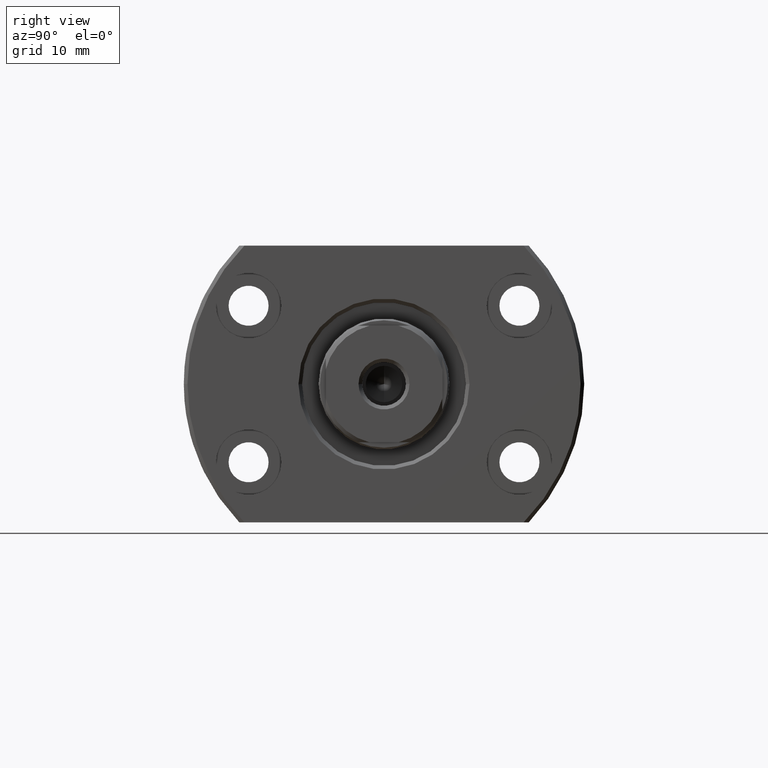
[diagram: clean part render]
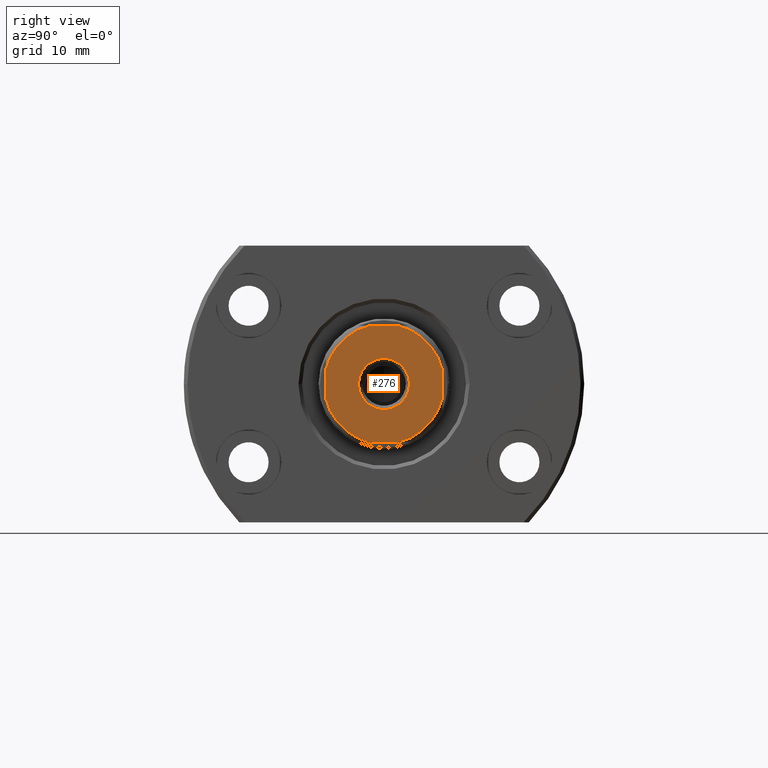
[diagram: same view with one face highlighted and labeled with its STEP entity id]
A machine part, right view. The second image highlights one B-rep face of the part: STEP entity #276.
In plain terms, the highlighted planar face has unit normal (-1, -0, 0).
Its self-contained STEP definition (entity closure, byte-faithful):
#18 = CARTESIAN_POINT ( 'NONE',  ( 74.99999999999985789, -8.000000000001245226, 2.015564437069743420 ) ) ;
#35 = CARTESIAN_POINT ( 'NONE',  ( 75.00000000000014211, 7.999999999998758327, -2.015564437079602200 ) ) ;
#69 = DIRECTION ( 'NONE',  ( 0.000000000000000000, 0.000000000000000000, -1.000000000000000000 ) ) ;
#72 = ORIENTED_EDGE ( 'NONE', *, *, #246, .T. ) ;
#95 = EDGE_CURVE ( 'NONE', #1307, #1718, #1510, .T. ) ;
#96 = LINE ( 'NONE', #374, #1894 ) ;
#111 = DIRECTION ( 'NONE',  ( 1.000000000000000000, 1.069542322069065801E-17, 0.000000000000000000 ) ) ;
#172 = ORIENTED_EDGE ( 'NONE', *, *, #95, .F. ) ;
#237 = VERTEX_POINT ( 'NONE', #3118 ) ;
#246 = EDGE_CURVE ( 'NONE', #237, #1926, #2461, .T. ) ;
#276 = ADVANCED_FACE ( 'NONE', ( #2366, #3133 ), #1137, .F. ) ;
#316 = CARTESIAN_POINT ( 'NONE',  ( 75.00000000000014211, 7.999999999998758327, 3.544361719689459900 ) ) ;
#354 = DIRECTION ( 'NONE',  ( -1.566181886088703027E-14, -1.000000000000000000, -2.447159197013598480E-16 ) ) ;
#374 = CARTESIAN_POINT ( 'NONE',  ( 74.99999999999985789, -8.000000000001243450, -3.544361719689461232 ) ) ;
#419 = VERTEX_POINT ( 'NONE', #3150 ) ;
#442 = VECTOR ( 'NONE', #354, 1000.000000000000000 ) ;
#514 = DIRECTION ( 'NONE',  ( 1.000000000000000000, 1.069542322069065801E-17, 0.000000000000000000 ) ) ;
#515 = VERTEX_POINT ( 'NONE', #2213 ) ;
#574 = AXIS2_PLACEMENT_3D ( 'NONE', #2583, #111, #852 ) ;
#582 = DIRECTION ( 'NONE',  ( -1.000000000000000000, -1.069542322069065801E-17, -0.000000000000000000 ) ) ;
#601 = CARTESIAN_POINT ( 'NONE',  ( 75.00000000000000000, -1.242948599619172861E-12, 0.000000000000000000 ) ) ;
#611 = LINE ( 'NONE', #1145, #442 ) ;
#624 = VECTOR ( 'NONE', #69, 1000.000000000000000 ) ;
#627 = VERTEX_POINT ( 'NONE', #1267 ) ;
#631 = CIRCLE ( 'NONE', #574, 8.250000000000008882 ) ;
#641 = VECTOR ( 'NONE', #3063, 1000.000000000000000 ) ;
#730 = ORIENTED_EDGE ( 'NONE', *, *, #1847, .F. ) ;
#738 = CARTESIAN_POINT ( 'NONE',  ( 75.00000000000000000, 8.021567415517992473E-16, 0.000000000000000000 ) ) ;
#813 = EDGE_CURVE ( 'NONE', #2883, #2110, #96, .T. ) ;
#852 = DIRECTION ( 'NONE',  ( 0.000000000000000000, -1.000000000000000000, 0.000000000000000000 ) ) ;
#875 = EDGE_LOOP ( 'NONE', ( #1975, #2621, #172, #3050, #730, #1335, #3104, #1123 ) ) ;
#915 = CIRCLE ( 'NONE', #2098, 8.250000000000008882 ) ;
#1025 = DIRECTION ( 'NONE',  ( 0.000000000000000000, -1.000000000000000000, 0.000000000000000000 ) ) ;
#1049 = EDGE_CURVE ( 'NONE', #1307, #1209, #631, .T. ) ;
#1123 = ORIENTED_EDGE ( 'NONE', *, *, #1298, .T. ) ;
#1133 = DIRECTION ( 'NONE',  ( 0.000000000000000000, -2.447159197013598480E-16, 1.000000000000000000 ) ) ;
#1137 = PLANE ( 'NONE',  #2935 ) ;
#1145 = CARTESIAN_POINT ( 'NONE',  ( 75.00000000000005684, 3.544361719688217338, -8.000000000000000000 ) ) ;
#1179 = ORIENTED_EDGE ( 'NONE', *, *, #1442, .T. ) ;
#1209 = VERTEX_POINT ( 'NONE', #1910 ) ;
#1229 = AXIS2_PLACEMENT_3D ( 'NONE', #1356, #582, #2533 ) ;
#1243 = DIRECTION ( 'NONE',  ( 1.000000000000000000, 1.069542322069065801E-17, 0.000000000000000000 ) ) ;
#1267 = CARTESIAN_POINT ( 'NONE',  ( 74.99999999999997158, -2.015564437074671478, -8.000000000000001776 ) ) ;
#1298 = EDGE_CURVE ( 'NONE', #2883, #627, #1741, .T. ) ;
#1307 = VERTEX_POINT ( 'NONE', #3001 ) ;
#1335 = ORIENTED_EDGE ( 'NONE', *, *, #1392, .T. ) ;
#1356 = CARTESIAN_POINT ( 'NONE',  ( 75.00000000000000000, -1.242948599619172861E-12, 0.000000000000000000 ) ) ;
#1392 = EDGE_CURVE ( 'NONE', #515, #2110, #1833, .T. ) ;
#1442 = EDGE_CURVE ( 'NONE', #1926, #237, #1698, .T. ) ;
#1510 = LINE ( 'NONE', #316, #624 ) ;
#1522 = DIRECTION ( 'NONE',  ( 1.000000000000000000, 1.069542322069065801E-17, 0.000000000000000000 ) ) ;
#1576 = AXIS2_PLACEMENT_3D ( 'NONE', #738, #1243, #1025 ) ;
#1591 = DIRECTION ( 'NONE',  ( -1.000000000000000000, -1.069542322069065801E-17, 0.000000000000000000 ) ) ;
#1698 = CIRCLE ( 'NONE', #1229, 3.500000000000215827 ) ;
#1718 = VERTEX_POINT ( 'NONE', #35 ) ;
#1741 = CIRCLE ( 'NONE', #1576, 8.250000000000008882 ) ;
#1795 = LINE ( 'NONE', #2818, #641 ) ;
#1829 = DIRECTION ( 'NONE',  ( -1.000000000000000000, -1.069542322069065801E-17, -0.000000000000000000 ) ) ;
#1833 = CIRCLE ( 'NONE', #2249, 8.250000000000010658 ) ;
#1847 = EDGE_CURVE ( 'NONE', #515, #1209, #1795, .T. ) ;
#1894 = VECTOR ( 'NONE', #1133, 1000.000000000000000 ) ;
#1910 = CARTESIAN_POINT ( 'NONE',  ( 75.00000000000002842, 2.015564437074672366, 8.000000000000001776 ) ) ;
#1926 = VERTEX_POINT ( 'NONE', #2073 ) ;
#1975 = ORIENTED_EDGE ( 'NONE', *, *, #2001, .F. ) ;
#2001 = EDGE_CURVE ( 'NONE', #419, #627, #611, .T. ) ;
#2073 = CARTESIAN_POINT ( 'NONE',  ( 75.00000000000000000, 3.499999999998967493, 0.000000000000000000 ) ) ;
#2098 = AXIS2_PLACEMENT_3D ( 'NONE', #2769, #514, #2539 ) ;
#2110 = VERTEX_POINT ( 'NONE', #18 ) ;
#2121 = CARTESIAN_POINT ( 'NONE',  ( 75.00000000000000000, -5.004653406798891484E-34, 0.000000000000000000 ) ) ;
#2213 = CARTESIAN_POINT ( 'NONE',  ( 74.99999999999997158, -2.015564437074678139, 8.000000000000001776 ) ) ;
#2249 = AXIS2_PLACEMENT_3D ( 'NONE', #2763, #1522, #2518 ) ;
#2311 = EDGE_CURVE ( 'NONE', #419, #1718, #915, .T. ) ;
#2366 = FACE_BOUND ( 'NONE', #3198, .T. ) ;
#2461 = CIRCLE ( 'NONE', #3203, 3.500000000000215827 ) ;
#2518 = DIRECTION ( 'NONE',  ( 0.000000000000000000, -1.000000000000000000, 0.000000000000000000 ) ) ;
#2533 = DIRECTION ( 'NONE',  ( 0.000000000000000000, -1.000000000000000000, 0.000000000000000000 ) ) ;
#2539 = DIRECTION ( 'NONE',  ( 0.000000000000000000, -1.000000000000000000, 8.881784197001252323E-16 ) ) ;
#2583 = CARTESIAN_POINT ( 'NONE',  ( 75.00000000000000000, 8.021567415517992473E-16, 0.000000000000000000 ) ) ;
#2621 = ORIENTED_EDGE ( 'NONE', *, *, #2311, .T. ) ;
#2640 = DIRECTION ( 'NONE',  ( 1.069542322069065801E-17, -1.000000000000000000, 0.000000000000000000 ) ) ;
#2657 = CARTESIAN_POINT ( 'NONE',  ( 75.00000000000000000, -8.000000000001243450, -2.015564437069737203 ) ) ;
#2763 = CARTESIAN_POINT ( 'NONE',  ( 75.00000000000000000, 8.021567415517992473E-16, 0.000000000000000000 ) ) ;
#2769 = CARTESIAN_POINT ( 'NONE',  ( 75.00000000000000000, 8.021567415517992473E-16, 0.000000000000000000 ) ) ;
#2818 = CARTESIAN_POINT ( 'NONE',  ( 74.99999999999994316, -3.544361719690702017, 8.000000000000000000 ) ) ;
#2825 = DIRECTION ( 'NONE',  ( 0.000000000000000000, -1.000000000000000000, 0.000000000000000000 ) ) ;
#2883 = VERTEX_POINT ( 'NONE', #2657 ) ;
#2935 = AXIS2_PLACEMENT_3D ( 'NONE', #2121, #1591, #2640 ) ;
#3001 = CARTESIAN_POINT ( 'NONE',  ( 75.00000000000000000, 7.999999999998758327, 2.015564437079602200 ) ) ;
#3050 = ORIENTED_EDGE ( 'NONE', *, *, #1049, .T. ) ;
#3063 = DIRECTION ( 'NONE',  ( 1.566181886088703027E-14, 1.000000000000000000, 2.447159197013598480E-16 ) ) ;
#3104 = ORIENTED_EDGE ( 'NONE', *, *, #813, .F. ) ;
#3118 = CARTESIAN_POINT ( 'NONE',  ( 75.00000000000000000, -3.500000000001580958, 4.286263797016150254E-16 ) ) ;
#3133 = FACE_OUTER_BOUND ( 'NONE', #875, .T. ) ;
#3150 = CARTESIAN_POINT ( 'NONE',  ( 75.00000000000002842, 2.015564437074676363, -8.000000000000000000 ) ) ;
#3198 = EDGE_LOOP ( 'NONE', ( #1179, #72 ) ) ;
#3203 = AXIS2_PLACEMENT_3D ( 'NONE', #601, #1829, #2825 ) ;